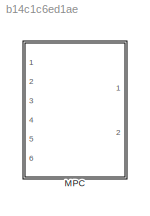
MODEL slx_b14c1c6ed1ae
KIND library
CONFIG AbsTol = auto
CONFIG EnableMultiTasking = off
CONFIG FixedStep = auto
CONFIG MaxStep = auto
CONFIG MinStep = auto
CONFIG RelTol = 1e-3
CONFIG SampleTimeConstraint = Unconstrained
CONFIG Solver = VariableStepAuto
CONFIG SolverName = VariableStepAuto
CONFIG StartTime = 0.0
CONFIG StopTime = 10.0
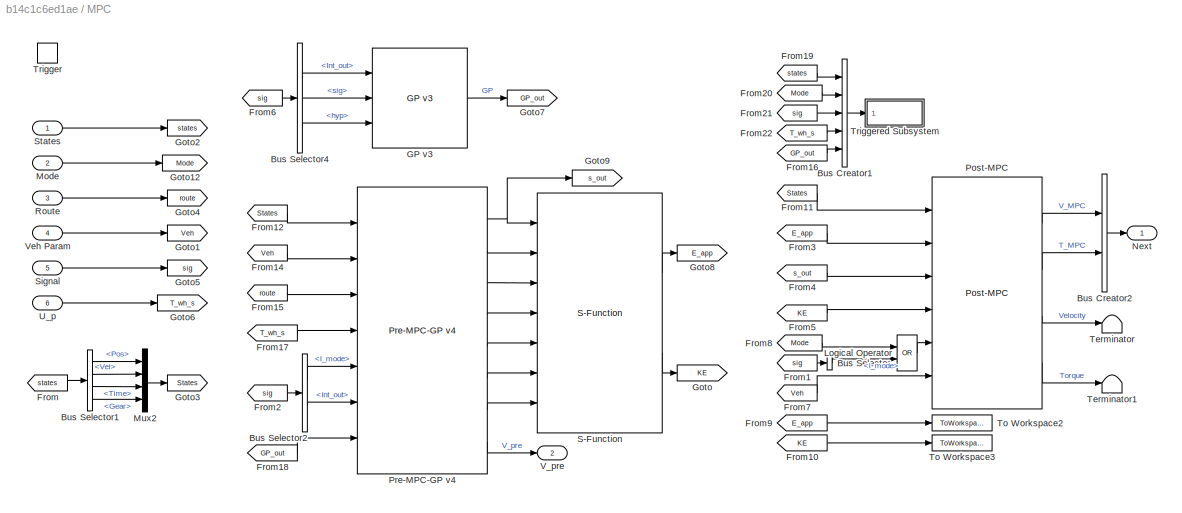
BLOCK [SubSystem] MPC
  Ports = [6, 2, 0, 1]
  RequestExecContextInheritance = off
  TreatAsAtomicUnit = on
BLOCK [BusCreator] MPC/Bus Creator1
  DisplayOption = bar
  InheritFromInputs = on
  Inputs = 5
  Ports = [5, 1]
BLOCK [BusCreator] MPC/Bus Creator2
  DisplayOption = bar
  InheritFromInputs = on
  Inputs = 2
  Ports = [2, 1]
BLOCK [BusSelector] MPC/Bus Selector
  OutputAsBus = off
  OutputSignals = Signal.I_mode
  Ports = [1, 1]
BLOCK [BusSelector] MPC/Bus Selector1
  OutputAsBus = off
  OutputSignals = Pos,Vel,Time,Gear
  Ports = [1, 4]
BLOCK [BusSelector] MPC/Bus Selector2
  OutputAsBus = off
  OutputSignals = I_mode,Int_out
  Ports = [1, 2]
BLOCK [BusSelector] MPC/Bus Selector4
  OutputAsBus = off
  OutputSignals = Int_out,sig,hyp
  Ports = [1, 3]
BLOCK [From] MPC/From
  GotoTag = states
BLOCK [From] MPC/From1
  GotoTag = sig
BLOCK [From] MPC/From10
  GotoTag = KE
BLOCK [From] MPC/From11
  GotoTag = States
BLOCK [From] MPC/From12
  GotoTag = States
BLOCK [From] MPC/From14
  GotoTag = Veh
BLOCK [From] MPC/From15
  GotoTag = route
BLOCK [From] MPC/From16
  GotoTag = GP_out
BLOCK [From] MPC/From17
  GotoTag = T_wh_s
BLOCK [From] MPC/From18
  GotoTag = GP_out
BLOCK [From] MPC/From19
  GotoTag = states
BLOCK [From] MPC/From2
  GotoTag = sig
BLOCK [From] MPC/From20
  GotoTag = Mode
BLOCK [From] MPC/From21
  GotoTag = sig
BLOCK [From] MPC/From22
  GotoTag = T_wh_s
BLOCK [From] MPC/From3
  GotoTag = E_app
BLOCK [From] MPC/From4
  GotoTag = s_out
BLOCK [From] MPC/From5
  GotoTag = KE
BLOCK [From] MPC/From6
  GotoTag = sig
BLOCK [From] MPC/From7
  GotoTag = Veh
BLOCK [From] MPC/From8
  GotoTag = Mode
BLOCK [From] MPC/From9
  GotoTag = E_app
BLOCK [Reference] MPC/GP v3  REF=MPC_Sublibraries/GP v3
  Ports = [3, 1]
  SourceBlock = MPC_Sublibraries/GP v3
BLOCK [Goto] MPC/Goto
  GotoTag = KE
BLOCK [Goto] MPC/Goto1
  GotoTag = Veh
BLOCK [Goto] MPC/Goto12
  GotoTag = Mode
BLOCK [Goto] MPC/Goto2
  GotoTag = states
BLOCK [Goto] MPC/Goto3
  GotoTag = States
BLOCK [Goto] MPC/Goto4
  GotoTag = route
BLOCK [Goto] MPC/Goto5
  GotoTag = sig
BLOCK [Goto] MPC/Goto6
  GotoTag = T_wh_s
BLOCK [Goto] MPC/Goto7
  GotoTag = GP_out
BLOCK [Goto] MPC/Goto8
  GotoTag = E_app
BLOCK [Goto] MPC/Goto9
  GotoTag = s_out
BLOCK [Logic] MPC/Logical Operator
  AllPortsSameDT = off
  Operator = OR
  OutDataTypeStr = boolean
  Ports = [2, 1]
BLOCK [Inport] MPC/Mode
  IconDisplay = Port number
  Port = 2
BLOCK [Mux] MPC/Mux2
  DisplayOption = bar
  Ports = [4, 1]
BLOCK [Outport] MPC/Next
  IconDisplay = Port number
BLOCK [Reference] MPC/Post-MPC  REF=MPC_Sublibraries/Post-MPC
  Ports = [6, 4]
  SourceBlock = MPC_Sublibraries/Post-MPC
BLOCK [Reference] MPC/Pre-MPC-GP v4  REF=MPC_Sublibraries/Pre-MPC-GP v4
  Ports = [7, 8]
  SourceBlock = MPC_Sublibraries/Pre-MPC-GP v4
BLOCK [Inport] MPC/Route
  IconDisplay = Port number
  Port = 3
BLOCK [Reference] MPC/S-Function  REF=MPC_Sublibraries/S-Function
  Ports = [7, 2]
  SourceBlock = MPC_Sublibraries/S-Function
BLOCK [Inport] MPC/Signal
  IconDisplay = Port number
  Port = 5
BLOCK [Inport] MPC/States
  IconDisplay = Port number
BLOCK [Terminator] MPC/Terminator
BLOCK [Terminator] MPC/Terminator1
BLOCK [ToWorkspace] MPC/To Workspace2
  FixptAsFi = on
  MaxDataPoints = inf
  Ports = [1]
  SampleTime = -1
  VariableName = E_app
BLOCK [ToWorkspace] MPC/To Workspace3
  FixptAsFi = on
  MaxDataPoints = inf
  Ports = [1]
  SampleTime = -1
  VariableName = KE
BLOCK [TriggerPort] MPC/Trigger
  Ports = []
  StatesWhenEnabling = held
  TriggerType = falling
  VariantControl = Variant
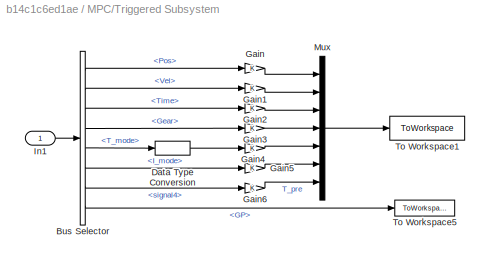
BLOCK [SubSystem] MPC/Triggered Subsystem
  Ports = [1]
  RequestExecContextInheritance = off
  TreatAsAtomicUnit = on
BLOCK [BusSelector] MPC/Triggered Subsystem/Bus Selector
  OutputAsBus = off
  OutputSignals = signal1.Pos,signal1.Vel,signal1.Time,signal1.Gear,signal2.T_mode,signal3.I_mode,signal4,GP
  Ports = [1, 8]
BLOCK [DataTypeConversion] MPC/Triggered Subsystem/Data Type Conversion
  OutDataTypeStr = double
  RndMeth = Floor
  SaturateOnIntegerOverflow = off
BLOCK [Gain] MPC/Triggered Subsystem/Gain
  OutDataTypeStr = Inherit: Inherit via internal rule
  ParamDataTypeStr = Inherit: Inherit via internal rule
  SaturateOnIntegerOverflow = off
BLOCK [Gain] MPC/Triggered Subsystem/Gain1
  OutDataTypeStr = Inherit: Inherit via internal rule
  ParamDataTypeStr = Inherit: Inherit via internal rule
  SaturateOnIntegerOverflow = off
BLOCK [Gain] MPC/Triggered Subsystem/Gain2
  OutDataTypeStr = Inherit: Inherit via internal rule
  ParamDataTypeStr = Inherit: Inherit via internal rule
  SaturateOnIntegerOverflow = off
BLOCK [Gain] MPC/Triggered Subsystem/Gain3
  OutDataTypeStr = Inherit: Inherit via internal rule
  ParamDataTypeStr = Inherit: Inherit via internal rule
  SaturateOnIntegerOverflow = off
BLOCK [Gain] MPC/Triggered Subsystem/Gain4
  OutDataTypeStr = Inherit: Inherit via internal rule
  ParamDataTypeStr = Inherit: Inherit via internal rule
  SaturateOnIntegerOverflow = off
BLOCK [Gain] MPC/Triggered Subsystem/Gain5
  OutDataTypeStr = Inherit: Inherit via internal rule
  ParamDataTypeStr = Inherit: Inherit via internal rule
  SaturateOnIntegerOverflow = off
BLOCK [Gain] MPC/Triggered Subsystem/Gain6
  OutDataTypeStr = Inherit: Inherit via internal rule
  ParamDataTypeStr = Inherit: Inherit via internal rule
  SaturateOnIntegerOverflow = off
BLOCK [Inport] MPC/Triggered Subsystem/In1
  IconDisplay = Port number
BLOCK [Mux] MPC/Triggered Subsystem/Mux
  DisplayOption = bar
  Inputs = 7
  Ports = [7, 1]
BLOCK [ToWorkspace] MPC/Triggered Subsystem/To Workspace1
  MaxDataPoints = inf
  Ports = [1]
  SampleTime = -1
  SaveFormat = Structure With Time
  VariableName = MPC_input
BLOCK [ToWorkspace] MPC/Triggered Subsystem/To Workspace5
  MaxDataPoints = inf
  Ports = [1]
  SampleTime = -1
  VariableName = GP_out
BLOCK [Inport] MPC/U_p
  IconDisplay = Port number
  Port = 6
BLOCK [Outport] MPC/V_pre
  IconDisplay = Port number
  Port = 2
BLOCK [Inport] MPC/Veh Param
  IconDisplay = Port number
  Port = 4
LINE MPC/Bus Creator1:1 -> MPC/Triggered Subsystem:1
LINE MPC/Bus Creator2:1 -> MPC/Next:1
LINE MPC/Bus Selector1:1 -> MPC/Mux2:1
LINE MPC/Bus Selector1:2 -> MPC/Mux2:2
LINE MPC/Bus Selector1:3 -> MPC/Mux2:3
LINE MPC/Bus Selector1:4 -> MPC/Mux2:4
LINE MPC/Bus Selector2:1 -> MPC/Pre-MPC-GP v4:5
LINE MPC/Bus Selector2:2 -> MPC/Pre-MPC-GP v4:6
LINE MPC/Bus Selector4:1 -> MPC/GP v3:1
LINE MPC/Bus Selector4:2 -> MPC/GP v3:2
LINE MPC/Bus Selector4:3 -> MPC/GP v3:3
LINE MPC/Bus Selector:1 -> MPC/Logical Operator:2
LINE MPC/From10:1 -> MPC/To Workspace3:1
LINE MPC/From11:1 -> MPC/Post-MPC:1
LINE MPC/From12:1 -> MPC/Pre-MPC-GP v4:1
LINE MPC/From14:1 -> MPC/Pre-MPC-GP v4:2
LINE MPC/From15:1 -> MPC/Pre-MPC-GP v4:3
LINE MPC/From16:1 -> MPC/Bus Creator1:5
LINE MPC/From17:1 -> MPC/Pre-MPC-GP v4:4
LINE MPC/From18:1 -> MPC/Pre-MPC-GP v4:7
LINE MPC/From19:1 -> MPC/Bus Creator1:1
LINE MPC/From1:1 -> MPC/Bus Selector:1
LINE MPC/From20:1 -> MPC/Bus Creator1:2
LINE MPC/From21:1 -> MPC/Bus Creator1:3
LINE MPC/From22:1 -> MPC/Bus Creator1:4
LINE MPC/From2:1 -> MPC/Bus Selector2:1
LINE MPC/From3:1 -> MPC/Post-MPC:2
LINE MPC/From4:1 -> MPC/Post-MPC:3
LINE MPC/From5:1 -> MPC/Post-MPC:4
LINE MPC/From6:1 -> MPC/Bus Selector4:1
LINE MPC/From7:1 -> MPC/Post-MPC:6
LINE MPC/From8:1 -> MPC/Logical Operator:1
LINE MPC/From9:1 -> MPC/To Workspace2:1
LINE MPC/From:1 -> MPC/Bus Selector1:1
LINE MPC/GP v3:1 -> MPC/Goto7:1
LINE MPC/Logical Operator:1 -> MPC/Post-MPC:5
LINE MPC/Mode:1 -> MPC/Goto12:1
LINE MPC/Mux2:1 -> MPC/Goto3:1
LINE MPC/Post-MPC:1 -> MPC/Bus Creator2:1
LINE MPC/Post-MPC:2 -> MPC/Bus Creator2:2
LINE MPC/Post-MPC:3 -> MPC/Terminator:1
LINE MPC/Post-MPC:4 -> MPC/Terminator1:1
NET MPC/Pre-MPC-GP v4:1 -> MPC/Goto9:1, MPC/S-Function:1
LINE MPC/Pre-MPC-GP v4:2 -> MPC/S-Function:2
LINE MPC/Pre-MPC-GP v4:3 -> MPC/S-Function:3
LINE MPC/Pre-MPC-GP v4:4 -> MPC/S-Function:4
LINE MPC/Pre-MPC-GP v4:5 -> MPC/S-Function:5
LINE MPC/Pre-MPC-GP v4:6 -> MPC/S-Function:6
LINE MPC/Pre-MPC-GP v4:7 -> MPC/S-Function:7
LINE MPC/Pre-MPC-GP v4:8 -> MPC/V_pre:1
LINE MPC/Route:1 -> MPC/Goto4:1
LINE MPC/S-Function:1 -> MPC/Goto8:1
LINE MPC/S-Function:2 -> MPC/Goto:1
LINE MPC/Signal:1 -> MPC/Goto5:1
LINE MPC/States:1 -> MPC/Goto2:1
LINE MPC/Triggered Subsystem/Bus Selector:1 -> MPC/Triggered Subsystem/Gain:1
LINE MPC/Triggered Subsystem/Bus Selector:2 -> MPC/Triggered Subsystem/Gain1:1
LINE MPC/Triggered Subsystem/Bus Selector:3 -> MPC/Triggered Subsystem/Gain2:1
LINE MPC/Triggered Subsystem/Bus Selector:4 -> MPC/Triggered Subsystem/Gain3:1
LINE MPC/Triggered Subsystem/Bus Selector:5 -> MPC/Triggered Subsystem/Data Type Conversion:1
LINE MPC/Triggered Subsystem/Bus Selector:6 -> MPC/Triggered Subsystem/Gain5:1
LINE MPC/Triggered Subsystem/Bus Selector:7 -> MPC/Triggered Subsystem/Gain6:1
LINE MPC/Triggered Subsystem/Bus Selector:8 -> MPC/Triggered Subsystem/To Workspace5:1
LINE MPC/Triggered Subsystem/Data Type Conversion:1 -> MPC/Triggered Subsystem/Gain4:1
LINE MPC/Triggered Subsystem/Gain1:1 -> MPC/Triggered Subsystem/Mux:2
LINE MPC/Triggered Subsystem/Gain2:1 -> MPC/Triggered Subsystem/Mux:3
LINE MPC/Triggered Subsystem/Gain3:1 -> MPC/Triggered Subsystem/Mux:4
LINE MPC/Triggered Subsystem/Gain4:1 -> MPC/Triggered Subsystem/Mux:5
LINE MPC/Triggered Subsystem/Gain5:1 -> MPC/Triggered Subsystem/Mux:6
LINE MPC/Triggered Subsystem/Gain6:1 -> MPC/Triggered Subsystem/Mux:7
LINE MPC/Triggered Subsystem/Gain:1 -> MPC/Triggered Subsystem/Mux:1
LINE MPC/Triggered Subsystem/In1:1 -> MPC/Triggered Subsystem/Bus Selector:1
LINE MPC/Triggered Subsystem/Mux:1 -> MPC/Triggered Subsystem/To Workspace1:1
LINE MPC/U_p:1 -> MPC/Goto6:1
LINE MPC/Veh Param:1 -> MPC/Goto1:1
note: NET lines group one-source signal fan-out (src -> all destinations, sorted); 1:1 wires keep LINE
